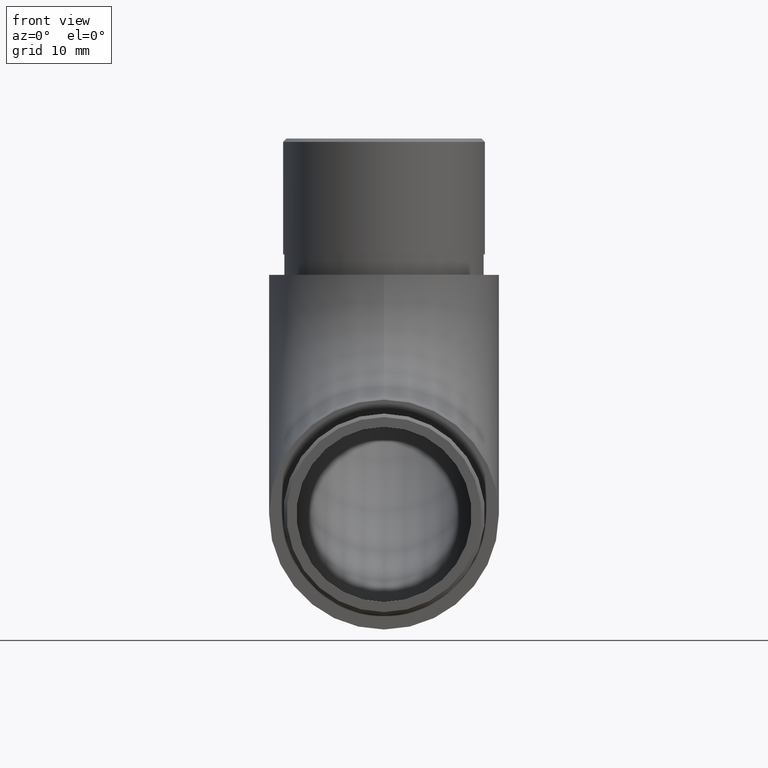
[diagram: clean part render]
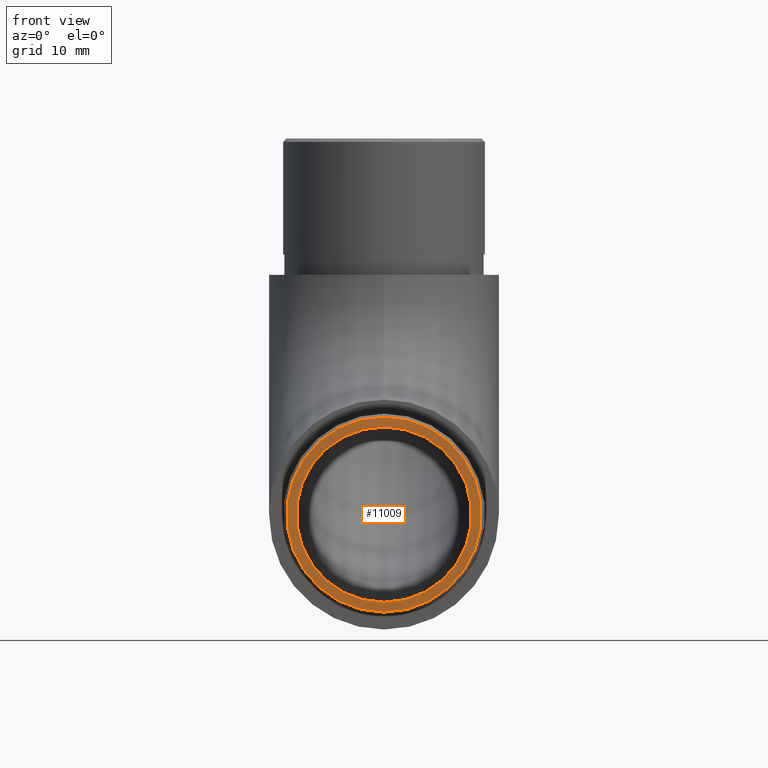
[diagram: same view with one face highlighted and labeled with its STEP entity id]
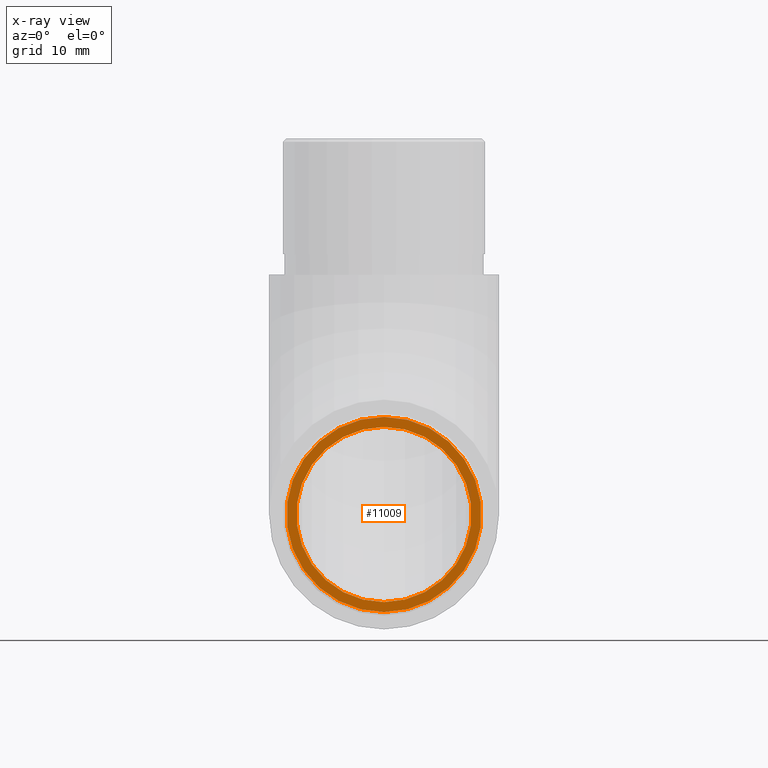
[diagram: x-ray of the same camera — body ghosted, the highlighted face saturated]
A machine part, front view. The second image highlights one B-rep face of the part: STEP entity #11009.
The next image is the same camera in x-ray: the body ghosted, the highlighted face saturated — about 0% of this face is hidden behind the body in this view.
In plain terms, the highlighted planar face has unit normal (0, -1, 0).
Its self-contained STEP definition (entity closure, byte-faithful):
#222 = FACE_OUTER_BOUND ( 'NONE', #587, .T. ) ;
#587 = EDGE_LOOP ( 'NONE', ( #869 ) ) ;
#777 = CARTESIAN_POINT ( 'NONE',  ( 0.0000000000000000000, -20.00000000000000000, 16.85000000000000500 ) ) ;
#815 = DIRECTION ( 'NONE',  ( 0.0000000000000000000, 0.0000000000000000000, -1.000000000000000000 ) ) ;
#869 = ORIENTED_EDGE ( 'NONE', *, *, #7609, .T. ) ;
#1995 = PLANE ( 'NONE',  #6211 ) ;
#2567 = DIRECTION ( 'NONE',  ( 0.0000000000000000000, -1.000000000000000000, 0.0000000000000000000 ) ) ;
#2642 = CARTESIAN_POINT ( 'NONE',  ( 0.0000000000000000000, -20.00000000000000000, 2.549999999999982900 ) ) ;
#2898 = ORIENTED_EDGE ( 'NONE', *, *, #9980, .F. ) ;
#3076 = AXIS2_PLACEMENT_3D ( 'NONE', #4871, #4976, #8640 ) ;
#3227 = EDGE_LOOP ( 'NONE', ( #2898 ) ) ;
#3831 = DIRECTION ( 'NONE',  ( 0.0000000000000000000, -0.0000000000000000000, -1.000000000000000000 ) ) ;
#3996 = AXIS2_PLACEMENT_3D ( 'NONE', #777, #2567, #815 ) ;
#4098 = CIRCLE ( 'NONE', #3996, 12.85000000000000000 ) ;
#4221 = VERTEX_POINT ( 'NONE', #6287 ) ;
#4682 = CARTESIAN_POINT ( 'NONE',  ( 0.0000000000000000000, -20.00000000000000000, 16.85000000000000500 ) ) ;
#4758 = DIRECTION ( 'NONE',  ( 0.0000000000000000000, -1.000000000000000000, 0.0000000000000000000 ) ) ;
#4871 = CARTESIAN_POINT ( 'NONE',  ( 0.0000000000000000000, -20.00000000000000000, 16.85000000000000500 ) ) ;
#4976 = DIRECTION ( 'NONE',  ( 0.0000000000000000000, -1.000000000000000000, 0.0000000000000000000 ) ) ;
#6025 = FACE_BOUND ( 'NONE', #3227, .T. ) ;
#6211 = AXIS2_PLACEMENT_3D ( 'NONE', #4682, #4758, #3831 ) ;
#6287 = CARTESIAN_POINT ( 'NONE',  ( 0.0000000000000000000, -20.00000000000000000, 4.000000000000003600 ) ) ;
#6977 = VERTEX_POINT ( 'NONE', #2642 ) ;
#7609 = EDGE_CURVE ( 'NONE', #6977, #6977, #10001, .T. ) ;
#8640 = DIRECTION ( 'NONE',  ( 0.0000000000000000000, 0.0000000000000000000, -1.000000000000000000 ) ) ;
#9980 = EDGE_CURVE ( 'NONE', #4221, #4221, #4098, .T. ) ;
#10001 = CIRCLE ( 'NONE', #3076, 14.30000000000002000 ) ;
#11009 = ADVANCED_FACE ( 'NONE', ( #222, #6025 ), #1995, .T. ) ;